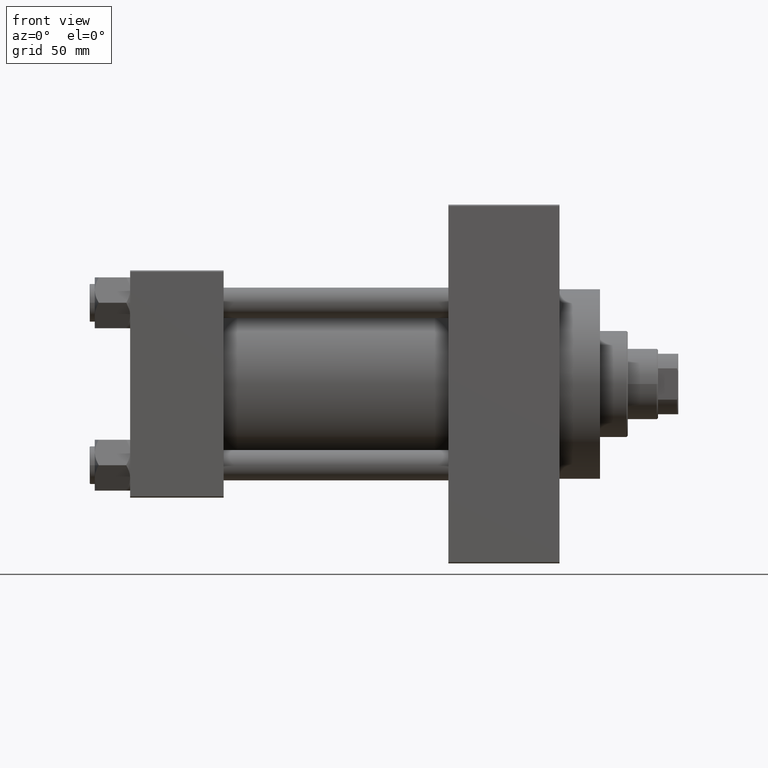
[diagram: clean part render]
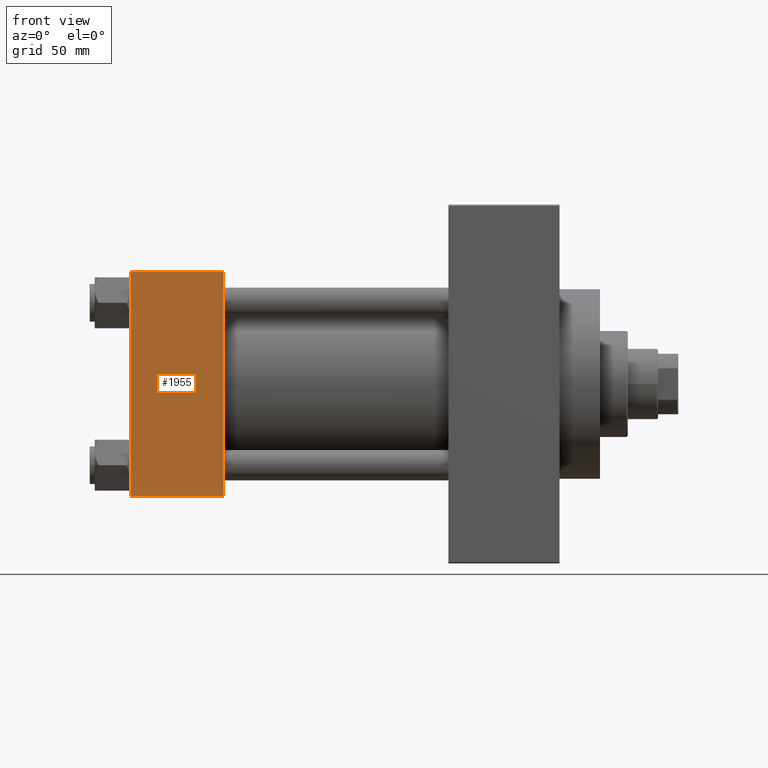
[diagram: same view with one face highlighted and labeled with its STEP entity id]
A machine part, front view. The second image highlights one B-rep face of the part: STEP entity #1955.
In plain terms, the highlighted planar face has unit normal (0, 1, 0).
Its self-contained STEP definition (entity closure, byte-faithful):
#1348 = AXIS2_PLACEMENT_3D ( 'NONE', #17313, #28968, #37844 ) ;
#1955 = ADVANCED_FACE ( 'NONE', ( #2370 ), #3789, .F. ) ;
#2370 = FACE_OUTER_BOUND ( 'NONE', #26779, .T. ) ;
#3789 = PLANE ( 'NONE',  #1348 ) ;
#4094 = VECTOR ( 'NONE', #21360, 1000.000000000000000 ) ;
#4621 = VECTOR ( 'NONE', #40318, 1000.000000000000000 ) ;
#6186 = CARTESIAN_POINT ( 'NONE',  ( 37.00000000000000000, -45.00000000000000711, 44.49999999999997158 ) ) ;
#8279 = ORIENTED_EDGE ( 'NONE', *, *, #8357, .T. ) ;
#8357 = EDGE_CURVE ( 'NONE', #37091, #35746, #21118, .T. ) ;
#8555 = ORIENTED_EDGE ( 'NONE', *, *, #22405, .T. ) ;
#10365 = CARTESIAN_POINT ( 'NONE',  ( 37.00000000000000000, -45.00000000000000711, 44.49999999999997158 ) ) ;
#12414 = VERTEX_POINT ( 'NONE', #22482 ) ;
#13605 = CARTESIAN_POINT ( 'NONE',  ( 0.000000000000000000, -45.00000000000000711, 44.49999999999997158 ) ) ;
#15488 = VECTOR ( 'NONE', #33744, 1000.000000000000000 ) ;
#17138 = EDGE_CURVE ( 'NONE', #35746, #12414, #26298, .T. ) ;
#17313 = CARTESIAN_POINT ( 'NONE',  ( 37.00000000000000000, -45.00000000000000711, 45.00000000000000000 ) ) ;
#19276 = ORIENTED_EDGE ( 'NONE', *, *, #17138, .T. ) ;
#21118 = LINE ( 'NONE', #6186, #4094 ) ;
#21360 = DIRECTION ( 'NONE',  ( -1.000000000000000000, 0.000000000000000000, 0.000000000000000000 ) ) ;
#21471 = LINE ( 'NONE', #25948, #45695 ) ;
#22405 = EDGE_CURVE ( 'NONE', #12414, #35952, #21471, .T. ) ;
#22482 = CARTESIAN_POINT ( 'NONE',  ( 0.000000000000000000, -45.00000000000000000, -44.49999999999995737 ) ) ;
#22791 = CARTESIAN_POINT ( 'NONE',  ( 37.00000000000000000, -45.00000000000000000, -44.49999999999995737 ) ) ;
#25175 = CARTESIAN_POINT ( 'NONE',  ( 37.00000000000000000, -45.00000000000000711, 45.00000000000000000 ) ) ;
#25948 = CARTESIAN_POINT ( 'NONE',  ( 37.00000000000000000, -45.00000000000000000, -44.49999999999998579 ) ) ;
#26298 = LINE ( 'NONE', #48383, #15488 ) ;
#26779 = EDGE_LOOP ( 'NONE', ( #19276, #8555, #27618, #8279 ) ) ;
#27618 = ORIENTED_EDGE ( 'NONE', *, *, #44271, .F. ) ;
#28968 = DIRECTION ( 'NONE',  ( -0.000000000000000000, 1.000000000000000000, 7.709882115452478166E-17 ) ) ;
#32611 = LINE ( 'NONE', #25175, #4621 ) ;
#33744 = DIRECTION ( 'NONE',  ( 0.000000000000000000, 7.709882115452476934E-17, -1.000000000000000000 ) ) ;
#35746 = VERTEX_POINT ( 'NONE', #13605 ) ;
#35952 = VERTEX_POINT ( 'NONE', #22791 ) ;
#37091 = VERTEX_POINT ( 'NONE', #10365 ) ;
#37844 = DIRECTION ( 'NONE',  ( 0.000000000000000000, -7.709882115452478166E-17, 1.000000000000000000 ) ) ;
#40318 = DIRECTION ( 'NONE',  ( 0.000000000000000000, 7.709882115452476934E-17, -1.000000000000000000 ) ) ;
#41086 = DIRECTION ( 'NONE',  ( 1.000000000000000000, 0.000000000000000000, 0.000000000000000000 ) ) ;
#44271 = EDGE_CURVE ( 'NONE', #37091, #35952, #32611, .T. ) ;
#45695 = VECTOR ( 'NONE', #41086, 1000.000000000000000 ) ;
#48383 = CARTESIAN_POINT ( 'NONE',  ( 0.000000000000000000, -45.00000000000000711, 45.00000000000000000 ) ) ;